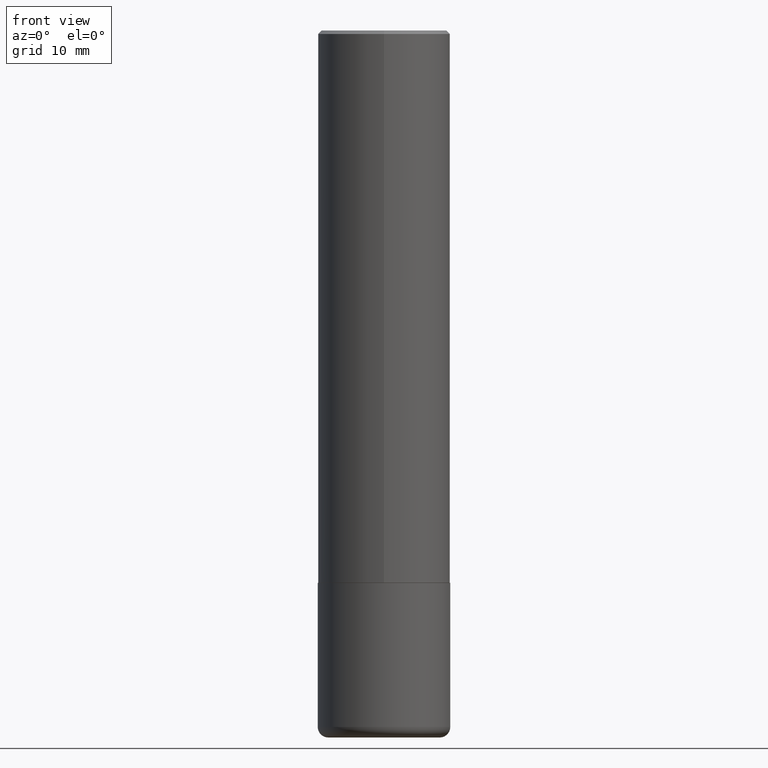
[diagram: clean part render]
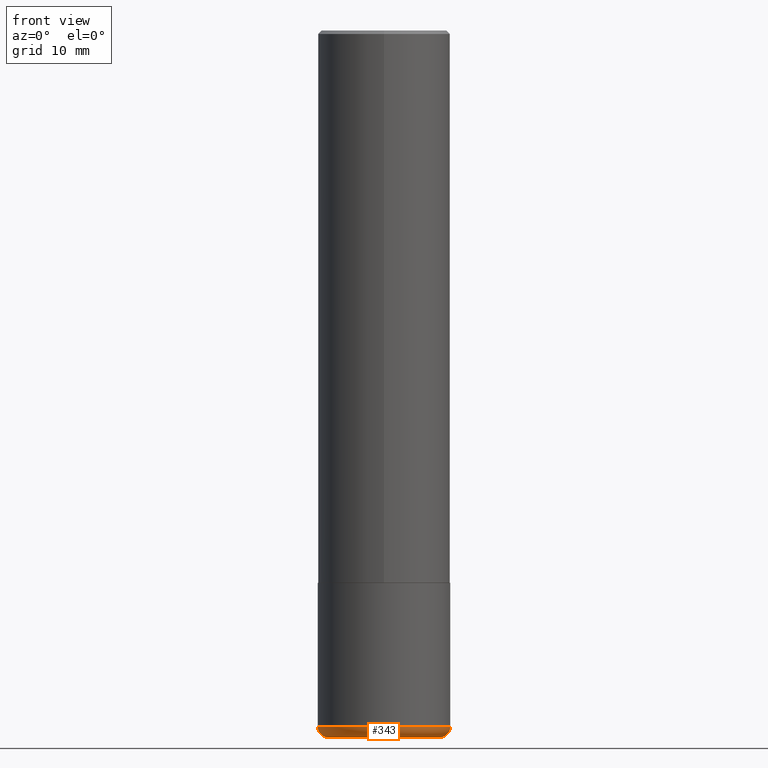
[diagram: same view with one face highlighted and labeled with its STEP entity id]
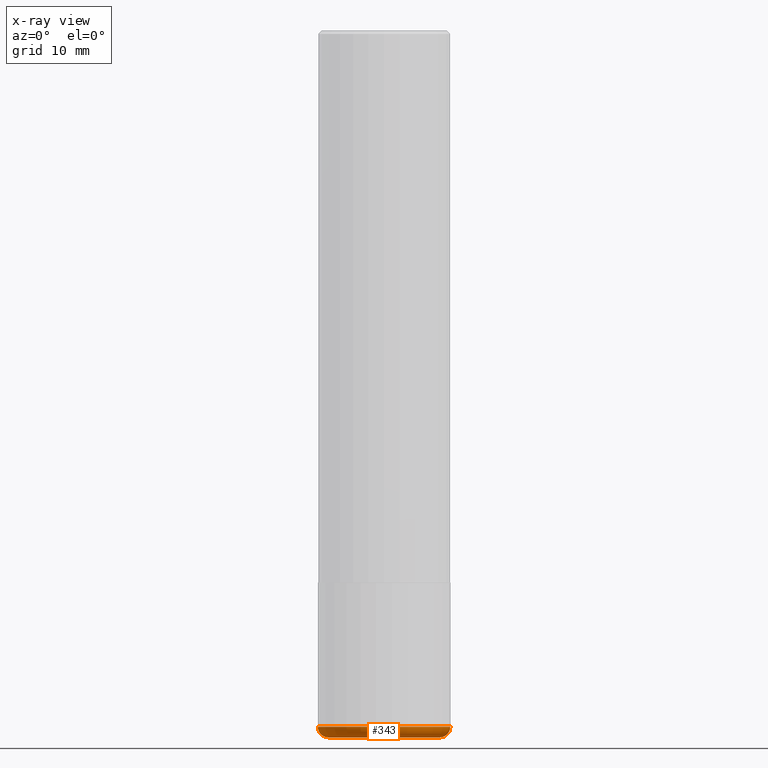
[diagram: x-ray of the same camera — body ghosted, the highlighted face saturated]
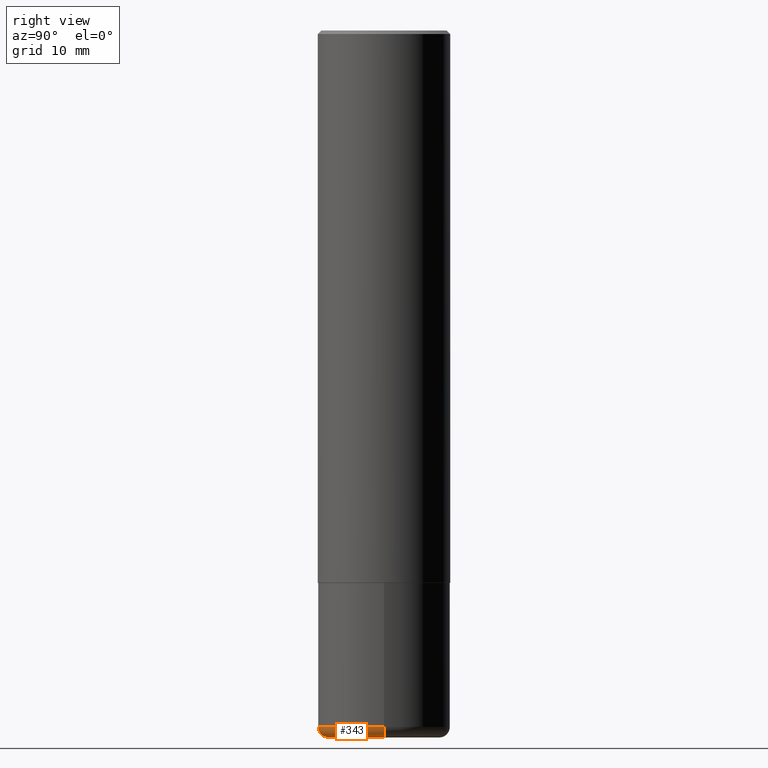
[diagram: same view with one face highlighted and labeled with its STEP entity id]
A machine part, front view. The second image highlights one B-rep face of the part: STEP entity #343.
The next image is the same camera in x-ray: the body ghosted, the highlighted face saturated — about 0% of this face is hidden behind the body in this view.
A second angle (right view) of the same face is appended — the face is thin or edge-on in the first view.
In plain terms, the highlighted toroidal blend (fillet) surface has major radius 8.001 mm and minor (blend) radius 1.524 mm.
Its self-contained STEP definition (entity closure, byte-faithful):
#3 = DIRECTION ( 'NONE',  ( -2.445468806185136597E-29, 3.491481338843145583E-15, 1.000000000000000000 ) ) ;
#24 = FACE_OUTER_BOUND ( 'NONE', #336, .T. ) ;
#28 = DIRECTION ( 'NONE',  ( 1.000000000000000000, -6.982962677686269077E-15, 4.883557194083113462E-29 ) ) ;
#34 = EDGE_CURVE ( 'NONE', #295, #45, #296, .T. ) ;
#45 = VERTEX_POINT ( 'NONE', #65 ) ;
#52 = DIRECTION ( 'NONE',  ( -2.445468806185136597E-29, 3.491481338843145583E-15, 1.000000000000000000 ) ) ;
#59 = AXIS2_PLACEMENT_3D ( 'NONE', #170, #3, #127 ) ;
#65 = CARTESIAN_POINT ( 'NONE',  ( 0.3749999999999999445, -1.637504747917434403E-14, -3.939999999999999947 ) ) ;
#67 = EDGE_CURVE ( 'NONE', #205, #45, #217, .T. ) ;
#73 = CARTESIAN_POINT ( 'NONE',  ( 9.635147096369438236E-29, -1.375643647504199401E-14, -3.939999999999999947 ) ) ;
#105 = VERTEX_POINT ( 'NONE', #189 ) ;
#120 = CARTESIAN_POINT ( 'NONE',  ( 9.635147096369438236E-29, -1.375643647504199401E-14, -3.939999999999999947 ) ) ;
#127 = DIRECTION ( 'NONE',  ( 1.000000000000000000, -6.982962677686267499E-15, 0.000000000000000000 ) ) ;
#139 = ORIENTED_EDGE ( 'NONE', *, *, #67, .T. ) ;
#140 = ORIENTED_EDGE ( 'NONE', *, *, #34, .F. ) ;
#143 = CIRCLE ( 'NONE', #310, 0.05999999999999990757 ) ;
#152 = DIRECTION ( 'NONE',  ( 1.000000000000000000, -6.982962677686279332E-15, 0.000000000000000000 ) ) ;
#161 = CARTESIAN_POINT ( 'NONE',  ( -0.3749999999999999445, -1.109190121594161832E-14, -3.939999999999999947 ) ) ;
#164 = DIRECTION ( 'NONE',  ( -2.445468806185136597E-29, 3.491481338843145583E-15, 1.000000000000000000 ) ) ;
#166 = AXIS2_PLACEMENT_3D ( 'NONE', #120, #52, #252 ) ;
#167 = ORIENTED_EDGE ( 'NONE', *, *, #398, .T. ) ;
#170 = CARTESIAN_POINT ( 'NONE',  ( 9.781875224740546387E-29, -1.396592535537258233E-14, -4.000000000000000000 ) ) ;
#179 = CARTESIAN_POINT ( 'NONE',  ( 0.3150000000000000577, -1.595606971851316740E-14, -3.939999999999999947 ) ) ;
#189 = CARTESIAN_POINT ( 'NONE',  ( -0.3150000000000000577, -1.140980847683494193E-14, -4.000000000000000000 ) ) ;
#198 = CARTESIAN_POINT ( 'NONE',  ( -0.3150000000000000577, -1.151822685739767881E-14, -3.939999999999999947 ) ) ;
#205 = VERTEX_POINT ( 'NONE', #245 ) ;
#206 = ORIENTED_EDGE ( 'NONE', *, *, #277, .F. ) ;
#209 = AXIS2_PLACEMENT_3D ( 'NONE', #179, #287, #152 ) ;
#217 = CIRCLE ( 'NONE', #209, 0.05999999999999990757 ) ;
#245 = CARTESIAN_POINT ( 'NONE',  ( 0.3150000000000000577, -1.616555859884375729E-14, -4.000000000000000000 ) ) ;
#252 = DIRECTION ( 'NONE',  ( 1.000000000000000000, -6.982962677686266711E-15, 0.000000000000000000 ) ) ;
#254 = TOROIDAL_SURFACE ( 'NONE', #408, 0.3150000000000000577, 0.05999999999999994227 ) ;
#277 = EDGE_CURVE ( 'NONE', #105, #295, #143, .T. ) ;
#287 = DIRECTION ( 'NONE',  ( -6.982962677686266711E-15, -1.000000000000000000, 3.491481338843145583E-15 ) ) ;
#291 = DIRECTION ( 'NONE',  ( 7.105427357601001859E-15, 1.000000000000000000, -3.491481338843145583E-15 ) ) ;
#295 = VERTEX_POINT ( 'NONE', #161 ) ;
#296 = CIRCLE ( 'NONE', #166, 0.3750000000000000555 ) ;
#310 = AXIS2_PLACEMENT_3D ( 'NONE', #198, #291, #389 ) ;
#336 = EDGE_LOOP ( 'NONE', ( #206, #167, #139, #140 ) ) ;
#343 = ADVANCED_FACE ( 'NONE', ( #24 ), #254, .T. ) ;
#348 = CIRCLE ( 'NONE', #59, 0.3150000000000000577 ) ;
#389 = DIRECTION ( 'NONE',  ( -1.000000000000000000, 7.105427357601001859E-15, 0.000000000000000000 ) ) ;
#398 = EDGE_CURVE ( 'NONE', #105, #205, #348, .T. ) ;
#408 = AXIS2_PLACEMENT_3D ( 'NONE', #73, #164, #28 ) ;